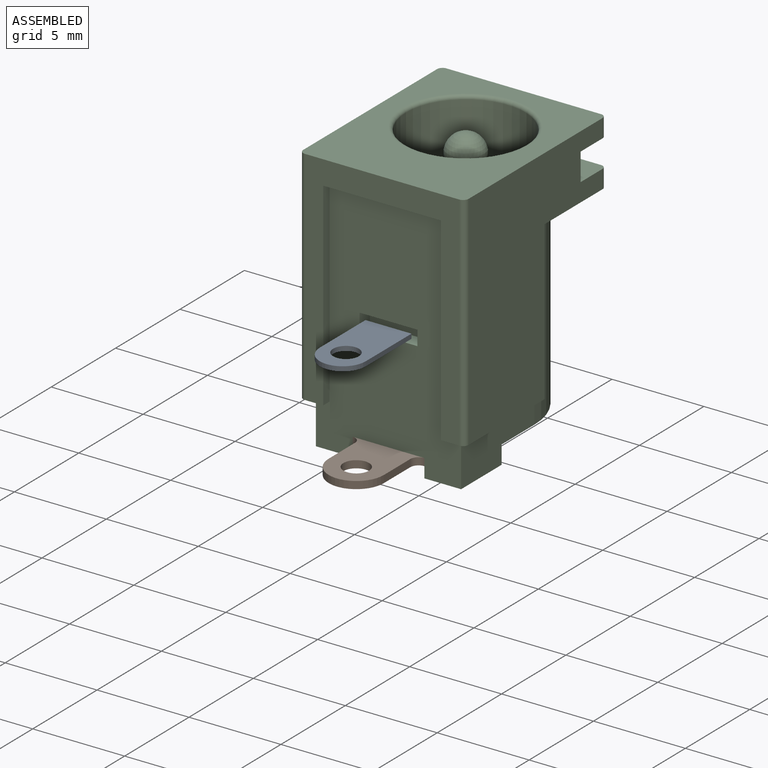
[diagram: assembled view]
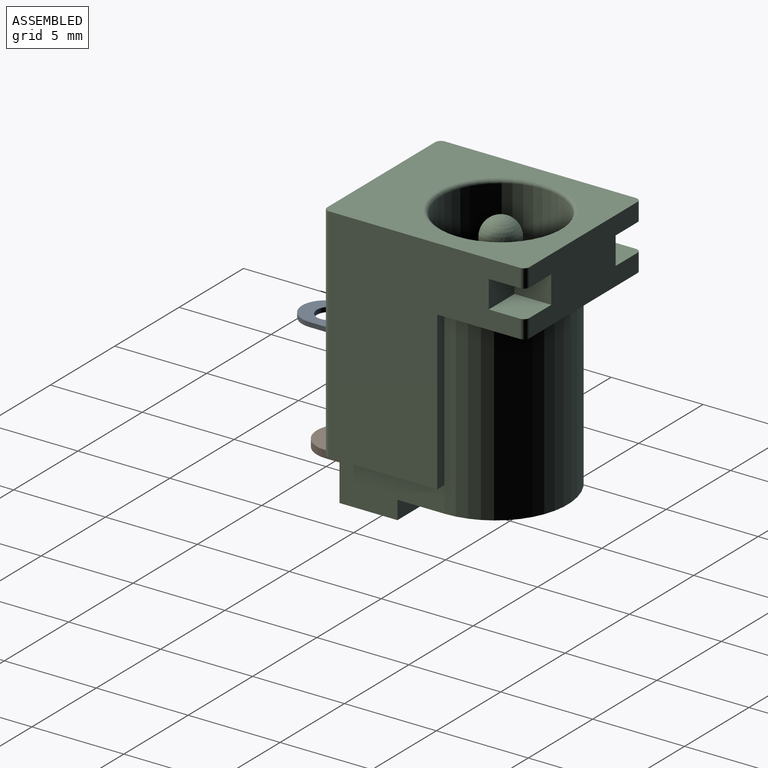
[diagram: assembled view, second angle]
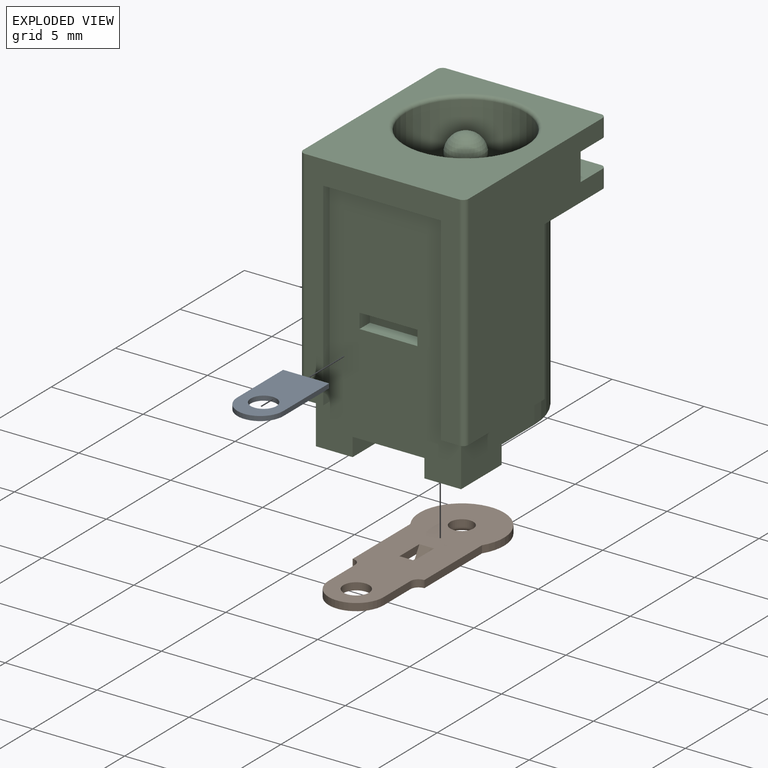
[diagram: exploded view]
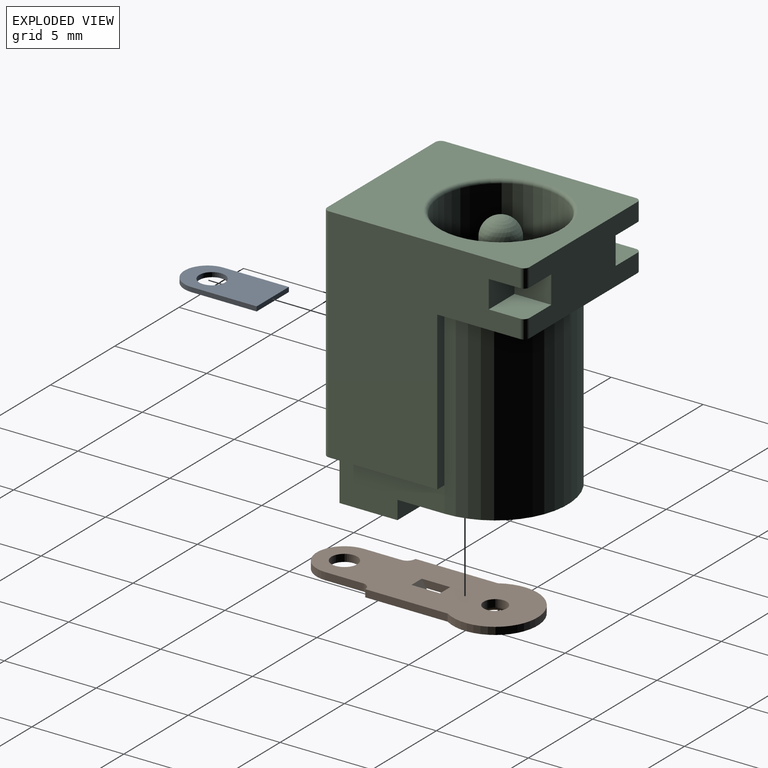
[diagram: exploded view, second angle]
ASSEMBLY  parts=3 mates=2
PART A: 7 faces, bbox 2.5x4.8x0.3 mm
  f0: plane 3.55x0.25mm, normal (-1,0,0), area 0.9mm2, adj f1,f2,f4,f5
  f1: plane 2.5x0.25mm, normal (0,1,0), area 0.6mm2, adj f0,f2,f4,f6
  f2: plane 4.8x2.5mm, normal (0,0,-1), area 9.8mm2, adj f0,f1,f3,f5,f6
  f3: cylinder r=0.7mm len=1.4mm, axis (0,0,-1), area 1.1mm2, adj f2,f4
  f4: plane 4.8x2.5mm, normal (0,0,1), area 9.8mm2, adj f0,f1,f3,f5,f6
  f5: cylinder r=1.25mm len=2.5mm, axis (0,0,-1), area 1mm2, adj f0,f2,f4,f6
  f6: plane 3.55x0.25mm, normal (1,0,0), area 0.9mm2, adj f1,f2,f4,f5
PART B: 29 faces, bbox 4.6x12x1 mm
  f0: plane 0.82x0.8mm, normal (0,0,1), area 0.7mm2, adj f1,f3,f4,f8
  f1: plane 0.8x0.6mm, normal (0,0.85,0.52), area 0.6mm2, adj f0,f3,f4,f13,f14,f17
  f2: plane 0.8x0.31mm, normal (0,-0.85,-0.52), area 0.3mm2, adj f3,f4,f19,f22
  f3: plane 2.34x0.6mm, normal (1,0,0), area 0.8mm2, adj f0,f1,f2,f5,f6,f7,f8,f16
  f4: plane 2.34x0.6mm, normal (-1,0,0), area 0.8mm2, adj f0,f1,f2,f5,f6,f7,f8,f16
  f5: plane 0.93x0.8mm, normal (0,0,-1), area 0.7mm2, adj f3,f4,f6,f19
  f6: cylinder r=0.3mm len=0.8mm, axis (1,0,0), area 0.2mm2, adj f3,f4,f5,f7
  f7: plane 0.8x0.31mm, normal (0,0.85,-0.52), area 0.3mm2, adj f3,f4,f6,f20
  f8: plane 0.8x0.6mm, normal (0,-0.85,0.52), area 0.6mm2, adj f0,f3,f4,f13,f14,f17
  f9: cylinder r=2.3mm len=4.6mm, axis (0,0,-1), area 3.9mm2, adj f14,f15,f16,f21
  f10: cylinder r=0.7mm len=1.4mm, axis (0,0,-1), area 1.8mm2, adj f14,f16
  f11: cylinder r=1.5mm len=3mm, axis (0,0,-1), area 1.9mm2, adj f14,f16,f18,f25
  f12: torus R=0.82mm, axis (0,0,-1), area 1.4mm2, adj f23,f24
  f13: plane 1.55x0.4mm, normal (1,0,0), area 0.5mm2, adj f1,f8,f14,f16
  f14: plane 12x4.6mm, normal (0,0,1), area 38.2mm2, adj f1,f8,f9,f10,f11,f13,f15,f17
  f15: plane 4.48x0.4mm, normal (1,0,0), area 1.8mm2, adj f9,f14,f16,f28
  f16: plane 12x4.6mm, normal (0,0,-1), area 31.8mm2, adj f3,f4,f9,f10,f11,f13,f15,f17
  f17: plane 1.55x0.4mm, normal (-1,0,0), area 0.5mm2, adj f1,f8,f14,f16
  f18: plane 2.05x0.4mm, normal (1,0,0), area 0.8mm2, adj f11,f14,f16,f28
  f19: cylinder r=0.3mm len=0.8mm, axis (1,0,0), area 0.2mm2, adj f2,f3,f4,f5
  f20: cylinder r=0.3mm len=0.8mm, axis (1,0,0), area 0.2mm2, adj f3,f4,f7,f16
  f21: plane 4.48x0.4mm, normal (-1,0,0), area 1.8mm2, adj f9,f14,f16,f26
  f22: cylinder r=0.3mm len=0.8mm, axis (-1,0,0), area 0.2mm2, adj f2,f3,f4,f16
  f23: cylinder r=0.62mm len=1.25mm, axis (0,0,-1), area 1.6mm2, adj f12,f14
  f24: plane 2.6x2.6mm, normal (0,0,-1), area 3.2mm2, adj f12,f27
  f25: plane 2.05x0.4mm, normal (-1,0,0), area 0.8mm2, adj f11,f14,f16,f26
  f26: cylinder r=0.45mm len=0.45mm, axis (0,0,-1), area 0.3mm2, adj f14,f16,f21,f25
  f27: torus R=1.3mm, axis (0,0,-1), area 2.8mm2, adj f16,f24
  f28: cylinder r=0.45mm len=0.45mm, axis (0,0,-1), area 0.3mm2, adj f14,f15,f16,f18
PART C: 50 faces, bbox 9x11x14.5 mm
  f0: cylinder r=3.25mm len=10.9mm, axis (0,0,-1), area 222.6mm2, adj f1,f10
  f1: torus R=3.45mm, axis (0,0,1), area 6.6mm2, adj f0,f21
  f2: cylinder r=1.5mm len=3mm, axis (0,0,1), area 4.7mm2, adj f9,f10
  f3: cylinder r=1mm len=9.3mm, axis (0,0,1), area 58.4mm2, adj f4,f9
  f4: sphere r=1mm, area 6.3mm2, adj f3
  f5: plane 9.65x7.9mm, normal (0,0,-1), area 56.9mm2, adj f6,f37,f41,f42,f43,f44,f46,f47
  f6: cylinder r=3.95mm len=10mm, axis (0,0,1), area 124.1mm2, adj f5,f30,f31,f32,f41,f42
  f7: plane 6.2x1.3mm, normal (0,0,-1), area 3.8mm2, adj f18,f19,f20,f31,f37,f38,f42
  f8: plane 6.2x1.3mm, normal (0,0,-1), area 3.8mm2, adj f16,f17,f18,f30,f37,f40,f41
  f9: plane 3x3mm, normal (0,0,1), area 3.9mm2, adj f2,f3
  f10: plane 6.5x6.5mm, normal (0,0,1), area 26.1mm2, adj f0,f2
  f11: cylinder r=0.3mm len=1mm, axis (0,0,-1), area 0.5mm2, adj f12,f20,f22,f32
  f12: plane 8.4x3.5mm, normal (0,1,0), area 24.3mm2, adj f11,f13,f14,f15,f21,f22,f23,f24
  f13: cylinder r=0.3mm len=1mm, axis (0,0,-1), area 0.5mm2, adj f12,f16,f28,f32
  f14: cylinder r=0.3mm len=1mm, axis (0,0,-1), area 0.5mm2, adj f12,f16,f21,f26
  f15: cylinder r=0.3mm len=1mm, axis (0,0,-1), area 0.5mm2, adj f12,f20,f21,f24
  f16: plane 12.1x10.4mm, normal (1,0,0), area 84.6mm2, adj f8,f13,f14,f17,f21,f26,f28,f29
  f17: cylinder r=0.3mm len=12.1mm, axis (0,0,-1), area 5.7mm2, adj f8,f16,f18,f21
  f18: plane 12.1x8.4mm, normal (0,-1,0), area 32.5mm2, adj f7,f8,f17,f19,f21,f38,f39,f40
  f19: cylinder r=0.3mm len=12.1mm, axis (0,0,-1), area 5.7mm2, adj f7,f18,f20,f21
  f20: plane 12.1x10.4mm, normal (-1,0,0), area 84.6mm2, adj f7,f11,f15,f19,f21,f22,f24,f25
  f21: plane 11x9mm, normal (0,0,1), area 61.5mm2, adj f1,f12,f14,f15,f16,f17,f18,f19
  f22: plane 2x2mm, normal (0,0,1), area 4mm2, adj f11,f12,f20,f23,f25
  f23: plane 2x1.5mm, normal (-1,0,0), area 3mm2, adj f12,f22,f24,f25
  f24: plane 2x2mm, normal (0,0,-1), area 4mm2, adj f12,f15,f20,f23,f25
  f25: plane 2x1.5mm, normal (0,1,0), area 3mm2, adj f20,f22,f23,f24
  f26: plane 2x2mm, normal (0,0,-1), area 4mm2, adj f12,f14,f16,f27,f29
  f27: plane 2x1.5mm, normal (1,0,0), area 3mm2, adj f12,f26,f28,f29
  f28: plane 2x2mm, normal (0,0,1), area 4mm2, adj f12,f13,f16,f27,f29
  f29: plane 2x1.5mm, normal (0,1,0), area 3mm2, adj f16,f26,f27,f28
  f30: plane 8.6x0.55mm, normal (0,1,0), area 4.7mm2, adj f6,f8,f16,f32
  f31: plane 8.6x0.55mm, normal (0,1,0), area 4.7mm2, adj f6,f7,f20,f32
  f32: plane 9x4.8mm, normal (0,0,-1), area 18.7mm2, adj f6,f11,f12,f13,f16,f20,f30,f31
  f33: plane 0.8x0.8mm, normal (1,0,0), area 0.6mm2, adj f34,f36,f37,f49
  f34: plane 3.15x0.8mm, normal (0,0,-1), area 2.5mm2, adj f33,f35,f36,f37
  f35: plane 0.8x0.8mm, normal (-1,0,0), area 0.6mm2, adj f34,f36,f37,f49
  f36: plane 3.15x0.8mm, normal (0,-1,0), area 2.5mm2, adj f33,f34,f35,f49
  f37: plane 13.2x7.9mm, normal (0,-1,0), area 81.7mm2, adj f5,f7,f8,f33,f34,f35,f38,f39
  f38: plane 10.8x0.5mm, normal (1,0,0), area 5.4mm2, adj f7,f18,f37,f39
  f39: plane 6.4x0.5mm, normal (0,0,-1), area 3.2mm2, adj f18,f37,f38,f40
  f40: plane 10.8x0.5mm, normal (-1,0,0), area 5.4mm2, adj f8,f18,f37,f39
  f41: plane 5.7x2.4mm, normal (1,0,0), area 11.1mm2, adj f5,f6,f8,f37,f44,f45
  f42: plane 5.7x2.4mm, normal (-1,0,0), area 11.1mm2, adj f5,f6,f7,f37,f46,f48
  f43: plane 3.15x1mm, normal (-1,0,0), area 3.2mm2, adj f5,f37,f44,f45
  f44: plane 2x1mm, normal (0,1,0), area 2mm2, adj f5,f41,f43,f45
  f45: plane 3.15x2mm, normal (0,0,-1), area 6.3mm2, adj f37,f41,f43,f44
  f46: plane 2x1mm, normal (0,1,0), area 2mm2, adj f5,f42,f47,f48
  f47: plane 3.15x1mm, normal (1,0,0), area 3.2mm2, adj f5,f37,f46,f48
  f48: plane 3.15x2mm, normal (0,0,-1), area 6.3mm2, adj f37,f42,f46,f47
  f49: plane 3.15x0.8mm, normal (0,0,1), area 2.5mm2, adj f33,f35,f36,f37
PLACE A t=(0,-0.8,0)mm
PLACE B at identity
PLACE C at identity fixed
MATE fastened A.f1 <-> C.f37  axis (0,1,0) through (0,0.5,-7.7)mm
MATE fastened B.f9 <-> C.f6  axis (0,0,1) through (0,6.2,-13.5)mm
